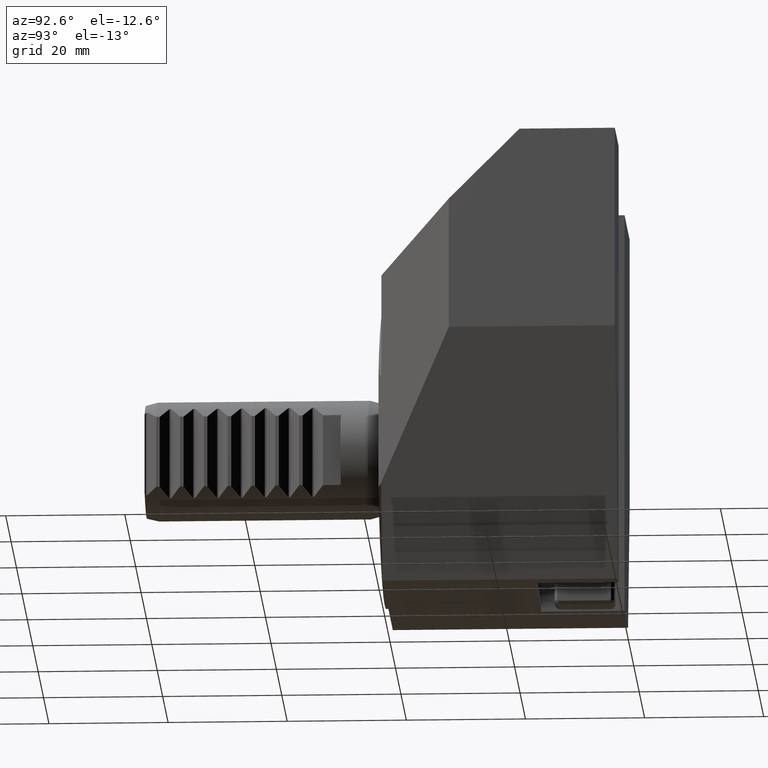
[diagram: clean part render]
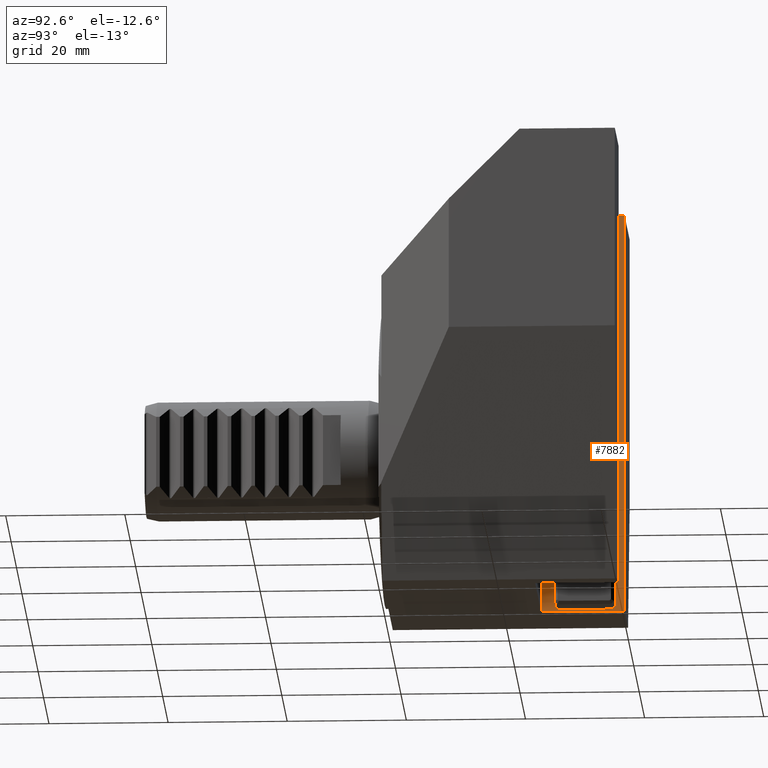
[diagram: same view with one face highlighted and labeled with its STEP entity id]
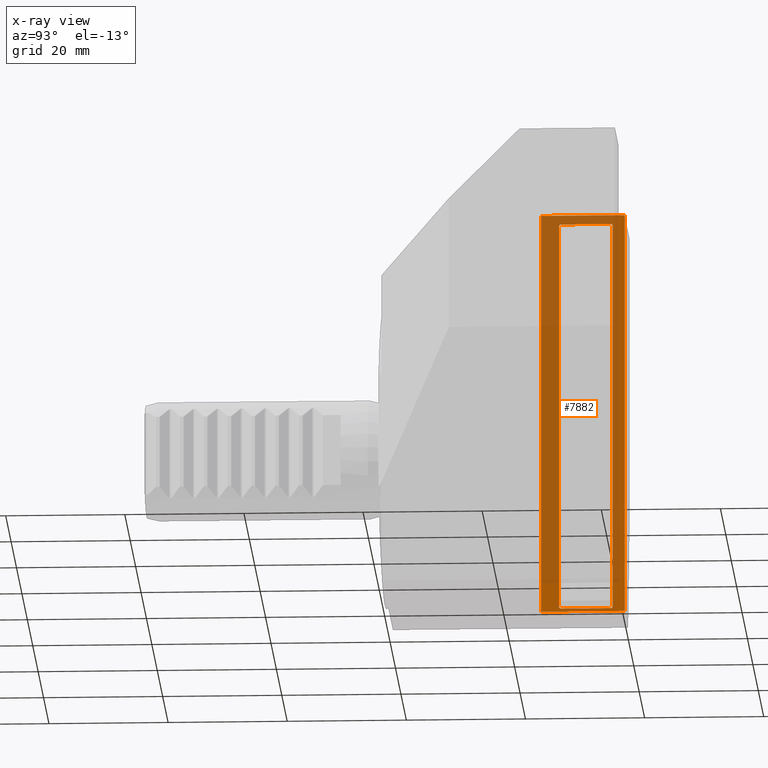
[diagram: x-ray of the same camera — body ghosted, the highlighted face saturated]
A machine part, auxiliary view. The second image highlights one B-rep face of the part: STEP entity #7882.
The next image is the same camera in x-ray: the body ghosted, the highlighted face saturated — about 74% of this face is hidden behind the body in this view.
In plain terms, the highlighted planar face has unit normal (-1, -0, 0).
Its self-contained STEP definition (entity closure, byte-faithful):
#275 = CARTESIAN_POINT ( 'NONE',  ( -6.000000000000003553, 26.00000000000000000, 43.00000000000000000 ) ) ;
#446 = LINE ( 'NONE', #3179, #6353 ) ;
#577 = VECTOR ( 'NONE', #16068, 1000.000000000000000 ) ;
#588 = VECTOR ( 'NONE', #9849, 1000.000000000000000 ) ;
#762 = LINE ( 'NONE', #4694, #6866 ) ;
#807 = ORIENTED_EDGE ( 'NONE', *, *, #15570, .F. ) ;
#977 = LINE ( 'NONE', #4731, #13412 ) ;
#1140 = PLANE ( 'NONE',  #8267 ) ;
#1157 = VERTEX_POINT ( 'NONE', #15973 ) ;
#1275 = CARTESIAN_POINT ( 'NONE',  ( -6.000000000000005329, 37.79289321881341124, 41.50000000000020606 ) ) ;
#1374 = DIRECTION ( 'NONE',  ( 3.260714123494943824E-17, -0.7071067811865474617, -0.7071067811865474617 ) ) ;
#1688 = CARTESIAN_POINT ( 'NONE',  ( -6.000000000000005329, 37.99999999999998579, 41.29289321881363861 ) ) ;
#1858 = DIRECTION ( 'NONE',  ( 4.611346136468049201E-17, -1.000000000000000000, -1.131457384369229627E-14 ) ) ;
#1947 = LINE ( 'NONE', #4690, #588 ) ;
#2116 = EDGE_LOOP ( 'NONE', ( #6165, #807, #2688, #11039, #6919, #5458, #4598, #8853 ) ) ;
#2331 = VERTEX_POINT ( 'NONE', #12227 ) ;
#2423 = FACE_OUTER_BOUND ( 'NONE', #2475, .T. ) ;
#2475 = EDGE_LOOP ( 'NONE', ( #10831, #8788, #12688, #4039 ) ) ;
#2507 = LINE ( 'NONE', #12830, #4581 ) ;
#2511 = FACE_BOUND ( 'NONE', #2116, .T. ) ;
#2688 = ORIENTED_EDGE ( 'NONE', *, *, #3748, .F. ) ;
#2962 = EDGE_CURVE ( 'NONE', #14949, #4615, #2507, .T. ) ;
#3179 = CARTESIAN_POINT ( 'NONE',  ( -6.000000000000005329, 28.99999999999997158, -24.29289321881365638 ) ) ;
#3614 = DIRECTION ( 'NONE',  ( 4.611346136468049201E-17, -1.000000000000000000, 0.000000000000000000 ) ) ;
#3748 = EDGE_CURVE ( 'NONE', #4615, #3833, #4166, .T. ) ;
#3833 = VERTEX_POINT ( 'NONE', #8766 ) ;
#3943 = VECTOR ( 'NONE', #16636, 1000.000000000000000 ) ;
#4039 = ORIENTED_EDGE ( 'NONE', *, *, #5423, .T. ) ;
#4131 = VERTEX_POINT ( 'NONE', #1688 ) ;
#4166 = LINE ( 'NONE', #9070, #10038 ) ;
#4249 = CARTESIAN_POINT ( 'NONE',  ( -6.000000000000005329, 37.99999999999998579, -24.29289321881366348 ) ) ;
#4321 = CARTESIAN_POINT ( 'NONE',  ( -6.000000000000005329, 37.79289321881343255, -24.50000000000021672 ) ) ;
#4435 = CARTESIAN_POINT ( 'NONE',  ( -6.000000000000005329, 37.79289321881341124, 41.50000000000020606 ) ) ;
#4443 = LINE ( 'NONE', #14741, #15935 ) ;
#4581 = VECTOR ( 'NONE', #1374, 1000.000000000000114 ) ;
#4598 = ORIENTED_EDGE ( 'NONE', *, *, #11930, .F. ) ;
#4615 = VERTEX_POINT ( 'NONE', #11163 ) ;
#4625 = VERTEX_POINT ( 'NONE', #7595 ) ;
#4674 = VECTOR ( 'NONE', #6602, 1000.000000000000114 ) ;
#4690 = CARTESIAN_POINT ( 'NONE',  ( -6.000000000000005329, 29.20710678118653192, -24.50000000000021672 ) ) ;
#4694 = CARTESIAN_POINT ( 'NONE',  ( -6.000000000000000888, -40.00000000000000711, 43.00000000000000711 ) ) ;
#4731 = CARTESIAN_POINT ( 'NONE',  ( -6.000000000000005329, 63.61859172223140035, -25.00000000000000000 ) ) ;
#4986 = CARTESIAN_POINT ( 'NONE',  ( -6.000000000000003553, 26.00000000000000000, -25.00000000000000000 ) ) ;
#5091 = EDGE_CURVE ( 'NONE', #4131, #11092, #5757, .T. ) ;
#5252 = VERTEX_POINT ( 'NONE', #275 ) ;
#5423 = EDGE_CURVE ( 'NONE', #2331, #10843, #16412, .T. ) ;
#5458 = ORIENTED_EDGE ( 'NONE', *, *, #5091, .F. ) ;
#5757 = LINE ( 'NONE', #10912, #577 ) ;
#5777 = EDGE_CURVE ( 'NONE', #1157, #4625, #1947, .T. ) ;
#6165 = ORIENTED_EDGE ( 'NONE', *, *, #5777, .F. ) ;
#6295 = VECTOR ( 'NONE', #8545, 1000.000000000000000 ) ;
#6353 = VECTOR ( 'NONE', #7129, 1000.000000000000114 ) ;
#6602 = DIRECTION ( 'NONE',  ( -3.260714123494943824E-17, 0.7071067811865474617, 0.7071067811865474617 ) ) ;
#6866 = VECTOR ( 'NONE', #7457, 1000.000000000000000 ) ;
#6919 = ORIENTED_EDGE ( 'NONE', *, *, #7092, .F. ) ;
#7092 = EDGE_CURVE ( 'NONE', #11092, #14949, #10930, .T. ) ;
#7129 = DIRECTION ( 'NONE',  ( -3.260714123494943824E-17, 0.7071067811865474617, -0.7071067811865474617 ) ) ;
#7457 = DIRECTION ( 'NONE',  ( 4.611346136468049201E-17, -1.000000000000000000, 0.000000000000000000 ) ) ;
#7576 = LINE ( 'NONE', #15043, #3943 ) ;
#7595 = CARTESIAN_POINT ( 'NONE',  ( -6.000000000000005329, 37.79289321881343255, -24.50000000000021672 ) ) ;
#7880 = VERTEX_POINT ( 'NONE', #4986 ) ;
#7882 = ADVANCED_FACE ( 'Defeature completata2_59', ( #2511, #2423 ), #1140, .F. ) ;
#8267 = AXIS2_PLACEMENT_3D ( 'NONE', #9104, #10150, #3614 ) ;
#8488 = CARTESIAN_POINT ( 'NONE',  ( -6.000000000000005329, 29.20710678118652837, 41.50000000000010658 ) ) ;
#8545 = DIRECTION ( 'NONE',  ( 0.000000000000000000, 0.000000000000000000, 1.000000000000000000 ) ) ;
#8766 = CARTESIAN_POINT ( 'NONE',  ( -6.000000000000005329, 28.99999999999997158, -24.29289321881365638 ) ) ;
#8788 = ORIENTED_EDGE ( 'NONE', *, *, #8833, .F. ) ;
#8833 = EDGE_CURVE ( 'NONE', #7880, #5252, #4443, .T. ) ;
#8853 = ORIENTED_EDGE ( 'NONE', *, *, #10092, .F. ) ;
#9070 = CARTESIAN_POINT ( 'NONE',  ( -6.000000000000005329, 28.99999999999997158, 41.29289321881354624 ) ) ;
#9104 = CARTESIAN_POINT ( 'NONE',  ( -6.000000000000005329, 63.61859172223140035, -25.00000000000000000 ) ) ;
#9140 = LINE ( 'NONE', #4321, #4674 ) ;
#9432 = DIRECTION ( 'NONE',  ( -0.000000000000000000, -0.000000000000000000, 1.000000000000000000 ) ) ;
#9849 = DIRECTION ( 'NONE',  ( -4.611346136468049201E-17, 1.000000000000000000, -7.888027660525971116E-66 ) ) ;
#10038 = VECTOR ( 'NONE', #14244, 1000.000000000000000 ) ;
#10092 = EDGE_CURVE ( 'NONE', #4625, #14103, #9140, .T. ) ;
#10150 = DIRECTION ( 'NONE',  ( -1.000000000000000000, -4.611346136468049201E-17, 0.000000000000000000 ) ) ;
#10831 = ORIENTED_EDGE ( 'NONE', *, *, #15407, .T. ) ;
#10843 = VERTEX_POINT ( 'NONE', #13202 ) ;
#10912 = CARTESIAN_POINT ( 'NONE',  ( -6.000000000000005329, 37.99999999999998579, 41.29289321881363861 ) ) ;
#10930 = LINE ( 'NONE', #4435, #12309 ) ;
#11039 = ORIENTED_EDGE ( 'NONE', *, *, #2962, .F. ) ;
#11092 = VERTEX_POINT ( 'NONE', #1275 ) ;
#11163 = CARTESIAN_POINT ( 'NONE',  ( -6.000000000000005329, 28.99999999999997158, 41.29289321881354624 ) ) ;
#11312 = DIRECTION ( 'NONE',  ( 4.611346136468048584E-17, -1.000000000000000000, 0.000000000000000000 ) ) ;
#11930 = EDGE_CURVE ( 'NONE', #14103, #4131, #7576, .T. ) ;
#11932 = EDGE_CURVE ( 'NONE', #2331, #7880, #977, .T. ) ;
#12227 = CARTESIAN_POINT ( 'NONE',  ( -6.000000000000004441, 39.99999999999999289, -25.00000000000000000 ) ) ;
#12309 = VECTOR ( 'NONE', #1858, 1000.000000000000000 ) ;
#12688 = ORIENTED_EDGE ( 'NONE', *, *, #11932, .F. ) ;
#12830 = CARTESIAN_POINT ( 'NONE',  ( -6.000000000000005329, 29.20710678118652837, 41.50000000000010658 ) ) ;
#13202 = CARTESIAN_POINT ( 'NONE',  ( -6.000000000000005329, 39.99999999999999289, 43.00000000000000711 ) ) ;
#13412 = VECTOR ( 'NONE', #11312, 1000.000000000000000 ) ;
#14103 = VERTEX_POINT ( 'NONE', #4249 ) ;
#14244 = DIRECTION ( 'NONE',  ( 1.404399394330350358E-130, -3.045530204778807921E-114, -1.000000000000000000 ) ) ;
#14741 = CARTESIAN_POINT ( 'NONE',  ( -6.000000000000003553, 26.00000000000000000, -25.00000000000000000 ) ) ;
#14949 = VERTEX_POINT ( 'NONE', #8488 ) ;
#14978 = CARTESIAN_POINT ( 'NONE',  ( -6.000000000000005329, 39.99999999999999289, 0.000000000000000000 ) ) ;
#15043 = CARTESIAN_POINT ( 'NONE',  ( -6.000000000000005329, 37.99999999999998579, -24.29289321881366348 ) ) ;
#15407 = EDGE_CURVE ( 'NONE', #10843, #5252, #762, .T. ) ;
#15570 = EDGE_CURVE ( 'NONE', #3833, #1157, #446, .T. ) ;
#15935 = VECTOR ( 'NONE', #9432, 1000.000000000000000 ) ;
#15973 = CARTESIAN_POINT ( 'NONE',  ( -6.000000000000005329, 29.20710678118652837, -24.50000000000021672 ) ) ;
#16068 = DIRECTION ( 'NONE',  ( 3.260714123494998675E-17, -0.7071067811865593411, 0.7071067811865356934 ) ) ;
#16412 = LINE ( 'NONE', #14978, #6295 ) ;
#16636 = DIRECTION ( 'NONE',  ( -1.404399394330350558E-130, 3.045530204778808642E-114, 1.000000000000000000 ) ) ;